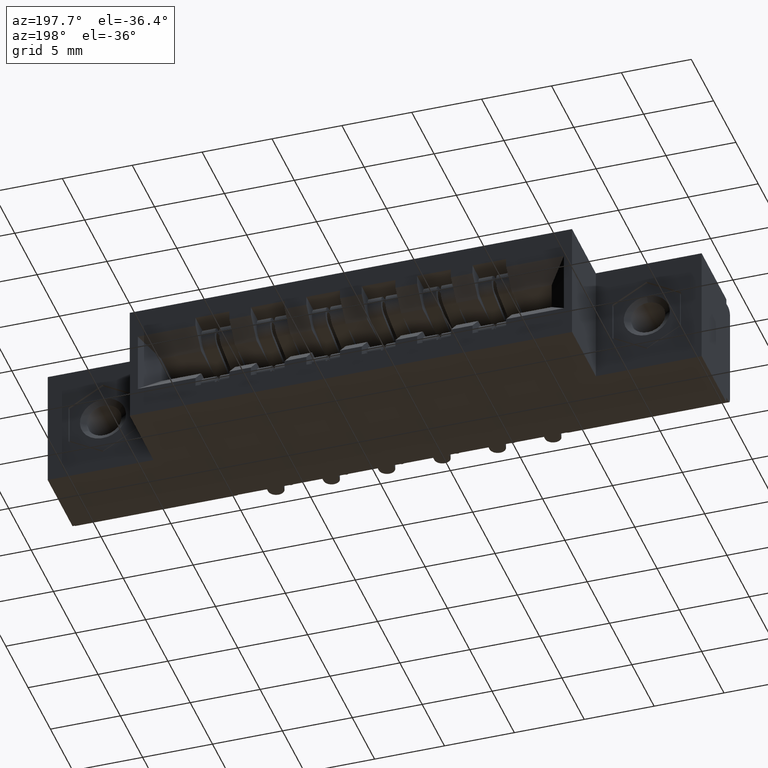
[diagram: clean part render]
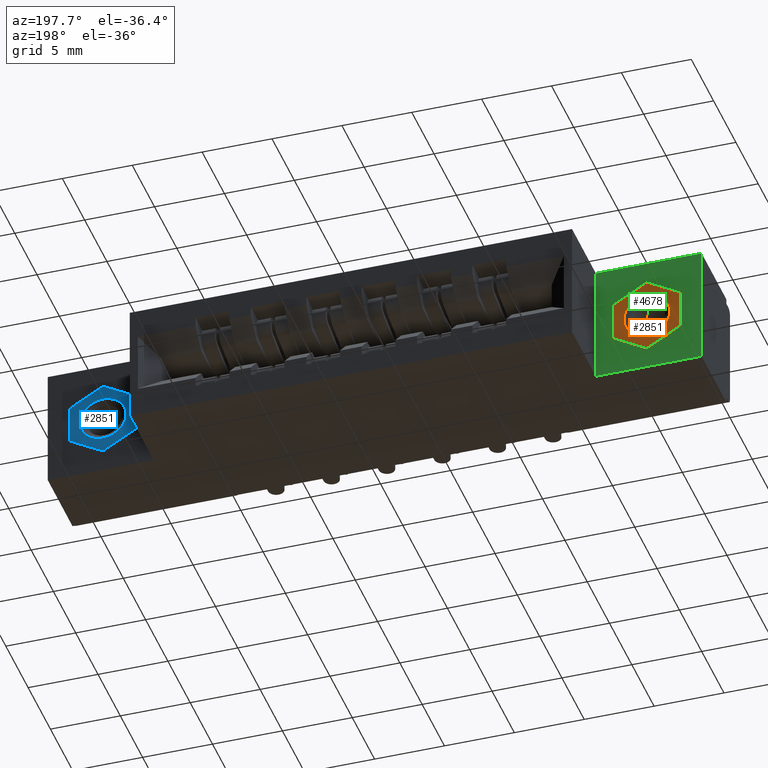
[diagram: same view with three faces highlighted in distinct colors, each labeled with its STEP entity id]
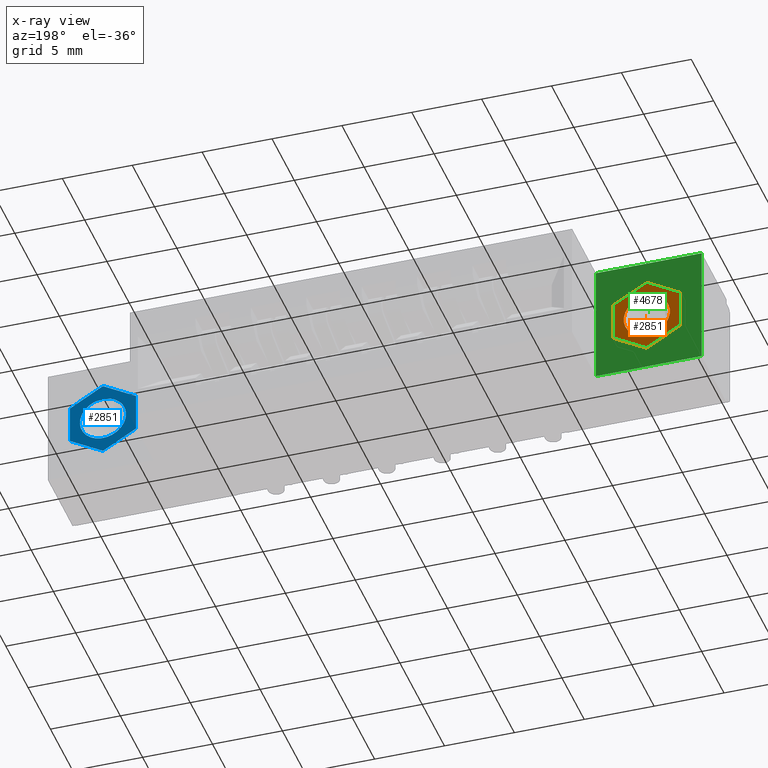
[diagram: x-ray of the same camera — body ghosted, the three highlighted faces saturated]
A machine part, auxiliary view with three faces highlighted in distinct colors.
The next image is the same camera in x-ray (body ghosted, the three faces saturated) — at least one of them is partly hidden behind the body in this view.
Their STEP definitions:

[orange] entity #2851 — the highlighted planar face has unit normal (-0, -1, 0).
#7 = VERTEX_POINT ( 'NONE', #2399 ) ;
#28 = ORIENTED_EDGE ( 'NONE', *, *, #7798, .F. ) ;
#98 = DIRECTION ( 'NONE',  ( -5.551115123125777800E-017, 4.314083075427404500E-032, 1.000000000000000000 ) ) ;
#169 = CARTESIAN_POINT ( 'NONE',  ( 0.09349999999999997200, 0.0000000000000000000, 0.05398225016923145100 ) ) ;
#185 = EDGE_CURVE ( 'NONE', #6111, #5441, #5147, .T. ) ;
#221 = DIRECTION ( 'NONE',  ( -5.551115123125777800E-017, 4.314083075427403900E-032, 1.000000000000000000 ) ) ;
#671 = FACE_BOUND ( 'NONE', #8172, .T. ) ;
#707 = DIRECTION ( 'NONE',  ( 0.8660254037844389300, 3.081487911019574600E-032, -0.4999999999999994400 ) ) ;
#756 = EDGE_LOOP ( 'NONE', ( #11207, #6673, #8438, #6713, #28, #935 ) ) ;
#811 = ORIENTED_EDGE ( 'NONE', *, *, #3426, .F. ) ;
#838 = CARTESIAN_POINT ( 'NONE',  ( 0.09349999999999943100, 0.0000000000000000000, -0.05398225016922926500 ) ) ;
#935 = ORIENTED_EDGE ( 'NONE', *, *, #4789, .F. ) ;
#987 = DIRECTION ( 'NONE',  ( -6.779273404243070200E-032, -1.000000000000000000, -4.005934284325450600E-032 ) ) ;
#1358 = VECTOR ( 'NONE', #3541, 39.37007874015748100 ) ;
#1528 = EDGE_CURVE ( 'NONE', #6957, #8663, #8757, .T. ) ;
#1565 = FACE_OUTER_BOUND ( 'NONE', #756, .T. ) ;
#2343 = VECTOR ( 'NONE', #707, 39.37007874015748100 ) ;
#2393 = LINE ( 'NONE', #838, #9307 ) ;
#2399 = CARTESIAN_POINT ( 'NONE',  ( -0.09350000000000051300, 0.0000000000000000000, 0.05398225016923036100 ) ) ;
#2528 = VERTEX_POINT ( 'NONE', #9574 ) ;
#2723 = LINE ( 'NONE', #4714, #9929 ) ;
#2754 = CARTESIAN_POINT ( 'NONE',  ( 0.0000000000000000000, 6.829619984160658000E-017, -0.1079645003384596300 ) ) ;
#2851 = ADVANCED_FACE ( 'NONE', ( #671, #1565 ), #5491, .F. ) ;
#2866 = VECTOR ( 'NONE', #11871, 39.37007874015748100 ) ;
#3426 = EDGE_CURVE ( 'NONE', #8663, #6957, #5856, .T. ) ;
#3541 = DIRECTION ( 'NONE',  ( 0.8660254037844389300, 8.011868568650892400E-032, 0.4999999999999994400 ) ) ;
#3599 = CARTESIAN_POINT ( 'NONE',  ( 0.09349999999999997200, 0.0000000000000000000, 0.05398225016923145100 ) ) ;
#3863 = AXIS2_PLACEMENT_3D ( 'NONE', #2754, #9204, #221 ) ;
#3915 = EDGE_CURVE ( 'NONE', #5441, #4474, #2393, .T. ) ;
#4474 = VERTEX_POINT ( 'NONE', #11667 ) ;
#4554 = CARTESIAN_POINT ( 'NONE',  ( -5.427613739028208100E-016, -6.829619984160658000E-017, -0.06499999999999801800 ) ) ;
#4714 = CARTESIAN_POINT ( 'NONE',  ( -0.09349999999999997200, 0.0000000000000000000, -0.05398225016922926500 ) ) ;
#4771 = LINE ( 'NONE', #8064, #2343 ) ;
#4789 = EDGE_CURVE ( 'NONE', #4474, #8632, #8574, .T. ) ;
#5015 = AXIS2_PLACEMENT_3D ( 'NONE', #7774, #11373, #10455 ) ;
#5147 = LINE ( 'NONE', #3599, #2866 ) ;
#5420 = EDGE_CURVE ( 'NONE', #7, #2528, #11130, .T. ) ;
#5441 = VERTEX_POINT ( 'NONE', #7205 ) ;
#5491 = PLANE ( 'NONE',  #3863 ) ;
#5561 = CARTESIAN_POINT ( 'NONE',  ( -5.463695987328526400E-016, -6.829619984160658000E-017, 2.185478394931410600E-015 ) ) ;
#5605 = CARTESIAN_POINT ( 'NONE',  ( -5.420176193684266300E-016, -6.829619984160658000E-017, 0.06500000000000238900 ) ) ;
#5856 = CIRCLE ( 'NONE', #5015, 0.06500000000000019700 ) ;
#6052 = ORIENTED_EDGE ( 'NONE', *, *, #1528, .F. ) ;
#6111 = VERTEX_POINT ( 'NONE', #169 ) ;
#6361 = EDGE_CURVE ( 'NONE', #2528, #6111, #4771, .T. ) ;
#6673 = ORIENTED_EDGE ( 'NONE', *, *, #185, .F. ) ;
#6713 = ORIENTED_EDGE ( 'NONE', *, *, #5420, .F. ) ;
#6957 = VERTEX_POINT ( 'NONE', #5605 ) ;
#7069 = AXIS2_PLACEMENT_3D ( 'NONE', #5561, #987, #11128 ) ;
#7205 = CARTESIAN_POINT ( 'NONE',  ( 0.09349999999999943100, 0.0000000000000000000, -0.05398225016922926500 ) ) ;
#7774 = CARTESIAN_POINT ( 'NONE',  ( -5.463695987328526400E-016, -6.829619984160658000E-017, 2.185478394931410600E-015 ) ) ;
#7798 = EDGE_CURVE ( 'NONE', #8632, #7, #2723, .T. ) ;
#8005 = VECTOR ( 'NONE', #8694, 39.37007874015748100 ) ;
#8064 = CARTESIAN_POINT ( 'NONE',  ( 0.0000000000000000000, 0.0000000000000000000, 0.1079645003384618100 ) ) ;
#8094 = CARTESIAN_POINT ( 'NONE',  ( -0.09350000000000051300, 0.0000000000000000000, 0.05398225016923036100 ) ) ;
#8172 = EDGE_LOOP ( 'NONE', ( #811, #6052 ) ) ;
#8182 = DIRECTION ( 'NONE',  ( -0.8660254037844383700, -8.011868568650894600E-032, -0.5000000000000004400 ) ) ;
#8438 = ORIENTED_EDGE ( 'NONE', *, *, #6361, .F. ) ;
#8574 = LINE ( 'NONE', #11378, #8005 ) ;
#8632 = VERTEX_POINT ( 'NONE', #11033 ) ;
#8663 = VERTEX_POINT ( 'NONE', #4554 ) ;
#8694 = DIRECTION ( 'NONE',  ( -0.8660254037844386000, -4.314083075427404500E-032, 0.5000000000000000000 ) ) ;
#8757 = CIRCLE ( 'NONE', #7069, 0.06500000000000019700 ) ;
#9204 = DIRECTION ( 'NONE',  ( 6.779273404243071300E-032, 1.000000000000000000, -4.314083075427403400E-032 ) ) ;
#9307 = VECTOR ( 'NONE', #8182, 39.37007874015748100 ) ;
#9574 = CARTESIAN_POINT ( 'NONE',  ( 0.0000000000000000000, 0.0000000000000000000, 0.1079645003384618100 ) ) ;
#9929 = VECTOR ( 'NONE', #98, 39.37007874015748100 ) ;
#10455 = DIRECTION ( 'NONE',  ( 5.551115123125811100E-017, 0.0000000000000000000, -1.000000000000000000 ) ) ;
#11033 = CARTESIAN_POINT ( 'NONE',  ( -0.09349999999999997200, 0.0000000000000000000, -0.05398225016922926500 ) ) ;
#11128 = DIRECTION ( 'NONE',  ( 5.551115123125811100E-017, 0.0000000000000000000, -1.000000000000000000 ) ) ;
#11130 = LINE ( 'NONE', #8094, #1358 ) ;
#11207 = ORIENTED_EDGE ( 'NONE', *, *, #3915, .F. ) ;
#11373 = DIRECTION ( 'NONE',  ( -6.779273404243070200E-032, -1.000000000000000000, -4.005934284325450600E-032 ) ) ;
#11378 = CARTESIAN_POINT ( 'NONE',  ( 0.0000000000000000000, 6.829619984160658000E-017, -0.1079645003384596300 ) ) ;
#11667 = CARTESIAN_POINT ( 'NONE',  ( 0.0000000000000000000, 6.829619984160658000E-017, -0.1079645003384596300 ) ) ;
#11871 = DIRECTION ( 'NONE',  ( -1.276756478318928800E-015, -3.081487911019574600E-032, -1.000000000000000000 ) ) ;

[blue] entity #2851 — the highlighted planar face has unit normal (0, -1, 0).
#7 = VERTEX_POINT ( 'NONE', #2399 ) ;
#28 = ORIENTED_EDGE ( 'NONE', *, *, #7798, .F. ) ;
#98 = DIRECTION ( 'NONE',  ( -5.551115123125777800E-017, 4.314083075427404500E-032, 1.000000000000000000 ) ) ;
#169 = CARTESIAN_POINT ( 'NONE',  ( 0.09349999999999997200, 0.0000000000000000000, 0.05398225016923145100 ) ) ;
#185 = EDGE_CURVE ( 'NONE', #6111, #5441, #5147, .T. ) ;
#221 = DIRECTION ( 'NONE',  ( -5.551115123125777800E-017, 4.314083075427403900E-032, 1.000000000000000000 ) ) ;
#671 = FACE_BOUND ( 'NONE', #8172, .T. ) ;
#707 = DIRECTION ( 'NONE',  ( 0.8660254037844389300, 3.081487911019574600E-032, -0.4999999999999994400 ) ) ;
#756 = EDGE_LOOP ( 'NONE', ( #11207, #6673, #8438, #6713, #28, #935 ) ) ;
#811 = ORIENTED_EDGE ( 'NONE', *, *, #3426, .F. ) ;
#838 = CARTESIAN_POINT ( 'NONE',  ( 0.09349999999999943100, 0.0000000000000000000, -0.05398225016922926500 ) ) ;
#935 = ORIENTED_EDGE ( 'NONE', *, *, #4789, .F. ) ;
#987 = DIRECTION ( 'NONE',  ( -6.779273404243070200E-032, -1.000000000000000000, -4.005934284325450600E-032 ) ) ;
#1358 = VECTOR ( 'NONE', #3541, 39.37007874015748100 ) ;
#1528 = EDGE_CURVE ( 'NONE', #6957, #8663, #8757, .T. ) ;
#1565 = FACE_OUTER_BOUND ( 'NONE', #756, .T. ) ;
#2343 = VECTOR ( 'NONE', #707, 39.37007874015748100 ) ;
#2393 = LINE ( 'NONE', #838, #9307 ) ;
#2399 = CARTESIAN_POINT ( 'NONE',  ( -0.09350000000000051300, 0.0000000000000000000, 0.05398225016923036100 ) ) ;
#2528 = VERTEX_POINT ( 'NONE', #9574 ) ;
#2723 = LINE ( 'NONE', #4714, #9929 ) ;
#2754 = CARTESIAN_POINT ( 'NONE',  ( 0.0000000000000000000, 6.829619984160658000E-017, -0.1079645003384596300 ) ) ;
#2851 = ADVANCED_FACE ( 'NONE', ( #671, #1565 ), #5491, .F. ) ;
#2866 = VECTOR ( 'NONE', #11871, 39.37007874015748100 ) ;
#3426 = EDGE_CURVE ( 'NONE', #8663, #6957, #5856, .T. ) ;
#3541 = DIRECTION ( 'NONE',  ( 0.8660254037844389300, 8.011868568650892400E-032, 0.4999999999999994400 ) ) ;
#3599 = CARTESIAN_POINT ( 'NONE',  ( 0.09349999999999997200, 0.0000000000000000000, 0.05398225016923145100 ) ) ;
#3863 = AXIS2_PLACEMENT_3D ( 'NONE', #2754, #9204, #221 ) ;
#3915 = EDGE_CURVE ( 'NONE', #5441, #4474, #2393, .T. ) ;
#4474 = VERTEX_POINT ( 'NONE', #11667 ) ;
#4554 = CARTESIAN_POINT ( 'NONE',  ( -5.427613739028208100E-016, -6.829619984160658000E-017, -0.06499999999999801800 ) ) ;
#4714 = CARTESIAN_POINT ( 'NONE',  ( -0.09349999999999997200, 0.0000000000000000000, -0.05398225016922926500 ) ) ;
#4771 = LINE ( 'NONE', #8064, #2343 ) ;
#4789 = EDGE_CURVE ( 'NONE', #4474, #8632, #8574, .T. ) ;
#5015 = AXIS2_PLACEMENT_3D ( 'NONE', #7774, #11373, #10455 ) ;
#5147 = LINE ( 'NONE', #3599, #2866 ) ;
#5420 = EDGE_CURVE ( 'NONE', #7, #2528, #11130, .T. ) ;
#5441 = VERTEX_POINT ( 'NONE', #7205 ) ;
#5491 = PLANE ( 'NONE',  #3863 ) ;
#5561 = CARTESIAN_POINT ( 'NONE',  ( -5.463695987328526400E-016, -6.829619984160658000E-017, 2.185478394931410600E-015 ) ) ;
#5605 = CARTESIAN_POINT ( 'NONE',  ( -5.420176193684266300E-016, -6.829619984160658000E-017, 0.06500000000000238900 ) ) ;
#5856 = CIRCLE ( 'NONE', #5015, 0.06500000000000019700 ) ;
#6052 = ORIENTED_EDGE ( 'NONE', *, *, #1528, .F. ) ;
#6111 = VERTEX_POINT ( 'NONE', #169 ) ;
#6361 = EDGE_CURVE ( 'NONE', #2528, #6111, #4771, .T. ) ;
#6673 = ORIENTED_EDGE ( 'NONE', *, *, #185, .F. ) ;
#6713 = ORIENTED_EDGE ( 'NONE', *, *, #5420, .F. ) ;
#6957 = VERTEX_POINT ( 'NONE', #5605 ) ;
#7069 = AXIS2_PLACEMENT_3D ( 'NONE', #5561, #987, #11128 ) ;
#7205 = CARTESIAN_POINT ( 'NONE',  ( 0.09349999999999943100, 0.0000000000000000000, -0.05398225016922926500 ) ) ;
#7774 = CARTESIAN_POINT ( 'NONE',  ( -5.463695987328526400E-016, -6.829619984160658000E-017, 2.185478394931410600E-015 ) ) ;
#7798 = EDGE_CURVE ( 'NONE', #8632, #7, #2723, .T. ) ;
#8005 = VECTOR ( 'NONE', #8694, 39.37007874015748100 ) ;
#8064 = CARTESIAN_POINT ( 'NONE',  ( 0.0000000000000000000, 0.0000000000000000000, 0.1079645003384618100 ) ) ;
#8094 = CARTESIAN_POINT ( 'NONE',  ( -0.09350000000000051300, 0.0000000000000000000, 0.05398225016923036100 ) ) ;
#8172 = EDGE_LOOP ( 'NONE', ( #811, #6052 ) ) ;
#8182 = DIRECTION ( 'NONE',  ( -0.8660254037844383700, -8.011868568650894600E-032, -0.5000000000000004400 ) ) ;
#8438 = ORIENTED_EDGE ( 'NONE', *, *, #6361, .F. ) ;
#8574 = LINE ( 'NONE', #11378, #8005 ) ;
#8632 = VERTEX_POINT ( 'NONE', #11033 ) ;
#8663 = VERTEX_POINT ( 'NONE', #4554 ) ;
#8694 = DIRECTION ( 'NONE',  ( -0.8660254037844386000, -4.314083075427404500E-032, 0.5000000000000000000 ) ) ;
#8757 = CIRCLE ( 'NONE', #7069, 0.06500000000000019700 ) ;
#9204 = DIRECTION ( 'NONE',  ( 6.779273404243071300E-032, 1.000000000000000000, -4.314083075427403400E-032 ) ) ;
#9307 = VECTOR ( 'NONE', #8182, 39.37007874015748100 ) ;
#9574 = CARTESIAN_POINT ( 'NONE',  ( 0.0000000000000000000, 0.0000000000000000000, 0.1079645003384618100 ) ) ;
#9929 = VECTOR ( 'NONE', #98, 39.37007874015748100 ) ;
#10455 = DIRECTION ( 'NONE',  ( 5.551115123125811100E-017, 0.0000000000000000000, -1.000000000000000000 ) ) ;
#11033 = CARTESIAN_POINT ( 'NONE',  ( -0.09349999999999997200, 0.0000000000000000000, -0.05398225016922926500 ) ) ;
#11128 = DIRECTION ( 'NONE',  ( 5.551115123125811100E-017, 0.0000000000000000000, -1.000000000000000000 ) ) ;
#11130 = LINE ( 'NONE', #8094, #1358 ) ;
#11207 = ORIENTED_EDGE ( 'NONE', *, *, #3915, .F. ) ;
#11373 = DIRECTION ( 'NONE',  ( -6.779273404243070200E-032, -1.000000000000000000, -4.005934284325450600E-032 ) ) ;
#11378 = CARTESIAN_POINT ( 'NONE',  ( 0.0000000000000000000, 6.829619984160658000E-017, -0.1079645003384596300 ) ) ;
#11667 = CARTESIAN_POINT ( 'NONE',  ( 0.0000000000000000000, 6.829619984160658000E-017, -0.1079645003384596300 ) ) ;
#11871 = DIRECTION ( 'NONE',  ( -1.276756478318928800E-015, -3.081487911019574600E-032, -1.000000000000000000 ) ) ;

[green] entity #4678 — the highlighted planar face has unit normal (0, -1, 0).
#173 = CARTESIAN_POINT ( 'NONE',  ( 0.2979999999999999900, 0.2500000000000000600, 0.0000000000000000000 ) ) ;
#174 = CARTESIAN_POINT ( 'NONE',  ( 0.0000000000000000000, 0.2500000000000000600, -0.3430000000000000300 ) ) ;
#250 = ORIENTED_EDGE ( 'NONE', *, *, #1941, .T. ) ;
#293 = VECTOR ( 'NONE', #535, 39.37007874015748100 ) ;
#429 = VERTEX_POINT ( 'NONE', #11037 ) ;
#535 = DIRECTION ( 'NONE',  ( 0.8660254037844389300, 0.0000000000000000000, 0.4999999999999995600 ) ) ;
#843 = VECTOR ( 'NONE', #1365, 39.37007874015748100 ) ;
#885 = LINE ( 'NONE', #2101, #2767 ) ;
#909 = VECTOR ( 'NONE', #7582, 39.37007874015748100 ) ;
#1228 = ORIENTED_EDGE ( 'NONE', *, *, #11634, .F. ) ;
#1268 = VECTOR ( 'NONE', #2856, 39.37007874015748100 ) ;
#1365 = DIRECTION ( 'NONE',  ( -3.064572230298964700E-016, 0.0000000000000000000, -1.000000000000000000 ) ) ;
#1526 = CARTESIAN_POINT ( 'NONE',  ( 0.2514999999999998300, 0.2500000000000000600, -0.2272143009767990100 ) ) ;
#1669 = LINE ( 'NONE', #1526, #8436 ) ;
#1800 = FACE_OUTER_BOUND ( 'NONE', #4564, .T. ) ;
#1941 = EDGE_CURVE ( 'NONE', #7896, #5059, #7152, .T. ) ;
#2101 = CARTESIAN_POINT ( 'NONE',  ( 0.1549999999999998600, 0.2500000000000000600, -0.2829286019535977600 ) ) ;
#2219 = VECTOR ( 'NONE', #11948, 39.37007874015748100 ) ;
#2295 = VECTOR ( 'NONE', #2547, 39.37007874015748900 ) ;
#2408 = AXIS2_PLACEMENT_3D ( 'NONE', #3217, #8820, #9725 ) ;
#2476 = DIRECTION ( 'NONE',  ( 1.000000000000000000, 0.0000000000000000000, 0.0000000000000000000 ) ) ;
#2547 = DIRECTION ( 'NONE',  ( 0.8660254037844382600, 0.0000000000000000000, -0.5000000000000004400 ) ) ;
#2588 = CARTESIAN_POINT ( 'NONE',  ( 0.1549999999999999400, 0.2500000000000000600, -0.06007139804640226200 ) ) ;
#2767 = VECTOR ( 'NONE', #3942, 39.37007874015749600 ) ;
#2805 = VECTOR ( 'NONE', #2476, 39.37007874015748100 ) ;
#2856 = DIRECTION ( 'NONE',  ( 1.532286115149483800E-016, 0.0000000000000000000, 1.000000000000000000 ) ) ;
#2972 = ORIENTED_EDGE ( 'NONE', *, *, #10591, .T. ) ;
#3217 = CARTESIAN_POINT ( 'NONE',  ( 0.0000000000000000000, 0.2500000000000000600, -0.3430000000000000300 ) ) ;
#3278 = ORIENTED_EDGE ( 'NONE', *, *, #8804, .F. ) ;
#3446 = DIRECTION ( 'NONE',  ( -1.000000000000000000, -0.0000000000000000000, -0.0000000000000000000 ) ) ;
#3511 = CARTESIAN_POINT ( 'NONE',  ( 0.2979999999999999900, 0.2500000000000000600, -0.3430000000000000300 ) ) ;
#3701 = CARTESIAN_POINT ( 'NONE',  ( 0.2979999999999999900, 0.2500000000000000600, 0.0000000000000000000 ) ) ;
#3942 = DIRECTION ( 'NONE',  ( -0.8660254037844384900, 0.0000000000000000000, 0.5000000000000002200 ) ) ;
#4172 = PLANE ( 'NONE',  #2408 ) ;
#4374 = CARTESIAN_POINT ( 'NONE',  ( 0.2514999999999998300, 0.2500000000000000600, -0.2272143009767990100 ) ) ;
#4378 = FACE_BOUND ( 'NONE', #8022, .T. ) ;
#4564 = EDGE_LOOP ( 'NONE', ( #11821, #2972, #4931, #250 ) ) ;
#4654 = CARTESIAN_POINT ( 'NONE',  ( 0.2514999999999998900, 0.2500000000000000600, -0.1157856990232011700 ) ) ;
#4678 = ADVANCED_FACE ( 'NONE', ( #4378, #1800 ), #4172, .F. ) ;
#4868 = LINE ( 'NONE', #6919, #843 ) ;
#4931 = ORIENTED_EDGE ( 'NONE', *, *, #11192, .T. ) ;
#5059 = VERTEX_POINT ( 'NONE', #174 ) ;
#5197 = LINE ( 'NONE', #6885, #293 ) ;
#5283 = VERTEX_POINT ( 'NONE', #4654 ) ;
#5302 = CARTESIAN_POINT ( 'NONE',  ( 0.0000000000000000000, 0.2500000000000000600, 0.0000000000000000000 ) ) ;
#5569 = EDGE_CURVE ( 'NONE', #5059, #10728, #6816, .T. ) ;
#5631 = VERTEX_POINT ( 'NONE', #8220 ) ;
#5661 = VERTEX_POINT ( 'NONE', #6674 ) ;
#5919 = EDGE_CURVE ( 'NONE', #5661, #429, #5197, .T. ) ;
#5929 = VERTEX_POINT ( 'NONE', #10703 ) ;
#6134 = CARTESIAN_POINT ( 'NONE',  ( 0.0000000000000000000, 0.2500000000000000600, -0.3430000000000000300 ) ) ;
#6345 = CARTESIAN_POINT ( 'NONE',  ( 0.0000000000000000000, 0.2500000000000000600, 0.0000000000000000000 ) ) ;
#6348 = CARTESIAN_POINT ( 'NONE',  ( 0.05849999999999987800, 0.2500000000000000600, -0.2272143009767988400 ) ) ;
#6509 = LINE ( 'NONE', #3701, #909 ) ;
#6674 = CARTESIAN_POINT ( 'NONE',  ( 0.05849999999999989200, 0.2500000000000000600, -0.1157856990232011000 ) ) ;
#6816 = LINE ( 'NONE', #6345, #2219 ) ;
#6885 = CARTESIAN_POINT ( 'NONE',  ( 0.05849999999999989200, 0.2500000000000000600, -0.1157856990232011000 ) ) ;
#6919 = CARTESIAN_POINT ( 'NONE',  ( 0.2514999999999998900, 0.2500000000000000600, -0.1157856990232011700 ) ) ;
#7140 = VERTEX_POINT ( 'NONE', #4374 ) ;
#7152 = LINE ( 'NONE', #6134, #10020 ) ;
#7302 = ORIENTED_EDGE ( 'NONE', *, *, #5919, .F. ) ;
#7487 = EDGE_CURVE ( 'NONE', #5283, #7140, #4868, .T. ) ;
#7582 = DIRECTION ( 'NONE',  ( -4.977857131312432700E-016, 0.0000000000000000000, -1.000000000000000000 ) ) ;
#7896 = VERTEX_POINT ( 'NONE', #3511 ) ;
#7916 = ORIENTED_EDGE ( 'NONE', *, *, #9701, .F. ) ;
#7963 = EDGE_CURVE ( 'NONE', #429, #5283, #8059, .T. ) ;
#8022 = EDGE_LOOP ( 'NONE', ( #1228, #7916, #9977, #10615, #7302, #3278 ) ) ;
#8059 = LINE ( 'NONE', #2588, #2295 ) ;
#8220 = CARTESIAN_POINT ( 'NONE',  ( 0.05849999999999987800, 0.2500000000000000600, -0.2272143009767988400 ) ) ;
#8436 = VECTOR ( 'NONE', #8936, 39.37007874015748900 ) ;
#8738 = VERTEX_POINT ( 'NONE', #173 ) ;
#8804 = EDGE_CURVE ( 'NONE', #5631, #5661, #9050, .T. ) ;
#8820 = DIRECTION ( 'NONE',  ( 0.0000000000000000000, -1.000000000000000000, 0.0000000000000000000 ) ) ;
#8924 = CARTESIAN_POINT ( 'NONE',  ( 0.0000000000000000000, 0.2500000000000000600, 0.0000000000000000000 ) ) ;
#8936 = DIRECTION ( 'NONE',  ( -0.8660254037844391500, 0.0000000000000000000, -0.4999999999999990000 ) ) ;
#9050 = LINE ( 'NONE', #6348, #1268 ) ;
#9149 = LINE ( 'NONE', #8924, #2805 ) ;
#9701 = EDGE_CURVE ( 'NONE', #7140, #5929, #1669, .T. ) ;
#9725 = DIRECTION ( 'NONE',  ( 0.0000000000000000000, -0.0000000000000000000, -1.000000000000000000 ) ) ;
#9977 = ORIENTED_EDGE ( 'NONE', *, *, #7487, .F. ) ;
#10020 = VECTOR ( 'NONE', #3446, 39.37007874015748100 ) ;
#10591 = EDGE_CURVE ( 'NONE', #10728, #8738, #9149, .T. ) ;
#10615 = ORIENTED_EDGE ( 'NONE', *, *, #7963, .F. ) ;
#10703 = CARTESIAN_POINT ( 'NONE',  ( 0.1549999999999998000, 0.2500000000000000600, -0.2829286019535977600 ) ) ;
#10728 = VERTEX_POINT ( 'NONE', #5302 ) ;
#11037 = CARTESIAN_POINT ( 'NONE',  ( 0.1549999999999999400, 0.2500000000000000600, -0.06007139804640226200 ) ) ;
#11192 = EDGE_CURVE ( 'NONE', #8738, #7896, #6509, .T. ) ;
#11634 = EDGE_CURVE ( 'NONE', #5929, #5631, #885, .T. ) ;
#11821 = ORIENTED_EDGE ( 'NONE', *, *, #5569, .T. ) ;
#11948 = DIRECTION ( 'NONE',  ( -0.0000000000000000000, -0.0000000000000000000, 1.000000000000000000 ) ) ;